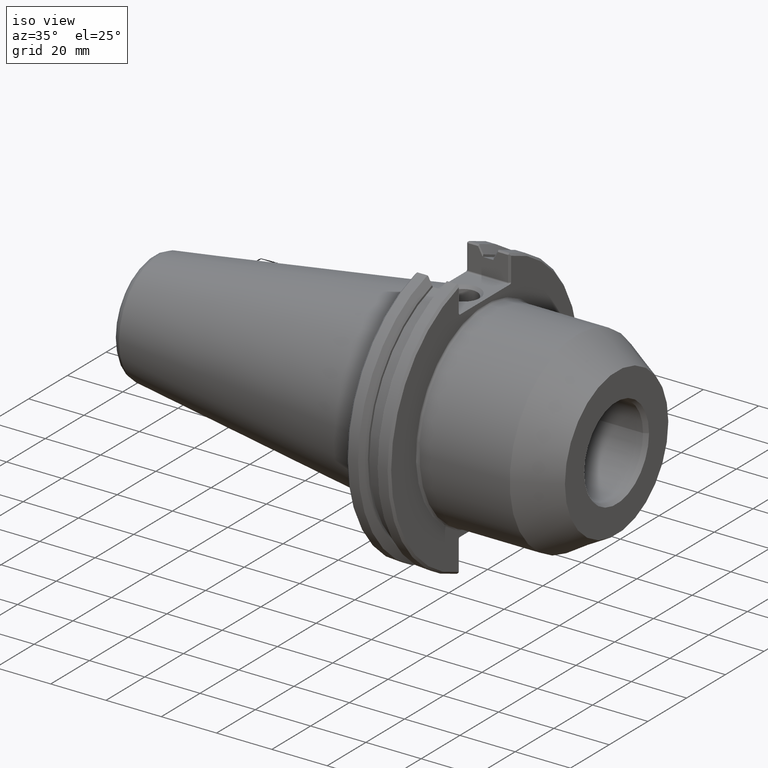
[diagram: clean part render]
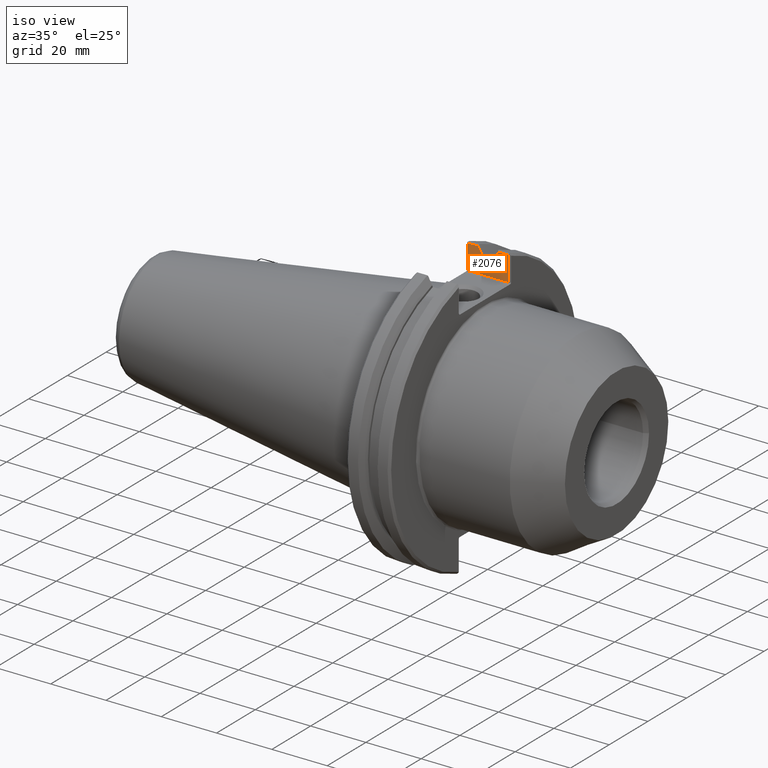
[diagram: same view with one face highlighted and labeled with its STEP entity id]
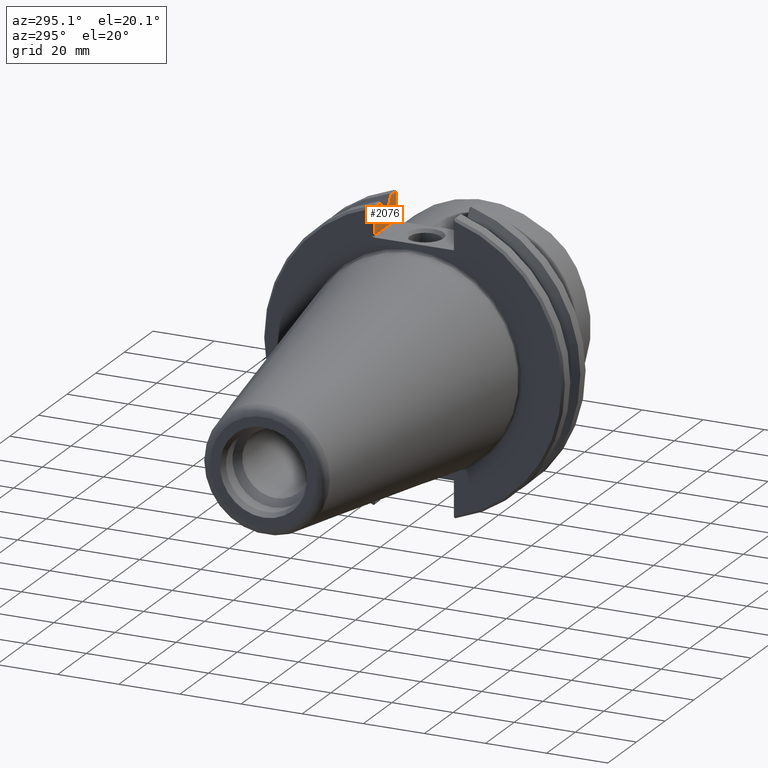
[diagram: same view with one face highlighted and labeled with its STEP entity id]
A machine part, iso view. The second image highlights one B-rep face of the part: STEP entity #2076.
A second angle (auxiliary view) of the same face is appended — the face is thin or edge-on in the first view.
In plain terms, the highlighted planar face has unit normal (-0, 1, 0).
Its self-contained STEP definition (entity closure, byte-faithful):
#1454=CARTESIAN_POINT('',(0.362849999993557,0.507500000000179,1.725081352368435));
#1455=VERTEX_POINT('',#1454);
#1465=CARTESIAN_POINT('',(0.362849999999929,0.507500000000179,1.723848238679724));
#1466=VERTEX_POINT('',#1465);
#1467=CARTESIAN_POINT('',(0.36284999999993,0.507500000000179,1.725081352368434));
#1468=DIRECTION('',(0.0,0.0,-1.0));
#1469=VECTOR('',#1468,0.00123311368871);
#1470=LINE('',#1467,#1469);
#1471=EDGE_CURVE('',#1455,#1466,#1470,.T.);
#1719=CARTESIAN_POINT('',(0.513849999999929,0.507500000000179,1.723848238679713));
#1720=VERTEX_POINT('',#1719);
#1728=CARTESIAN_POINT('',(0.513850000001122,0.507500000000179,1.725081352349767));
#1729=VERTEX_POINT('',#1728);
#1730=CARTESIAN_POINT('',(0.51384999999993,0.507500000000179,1.723848238679713));
#1731=DIRECTION('',(0.0,0.0,1.0));
#1732=VECTOR('',#1731,0.001233113670054);
#1733=LINE('',#1730,#1732);
#1734=EDGE_CURVE('',#1720,#1729,#1733,.T.);
#1886=CARTESIAN_POINT('',(0.580429496457739,0.507500000000179,1.844852935375717));
#1887=VERTEX_POINT('',#1886);
#1921=CARTESIAN_POINT('',(0.513850000002034,0.507500000000179,1.725081352349261));
#1922=CARTESIAN_POINT('',(0.518214049935065,0.507500000000179,1.732952999565582));
#1923=CARTESIAN_POINT('',(0.523921164037548,0.507500000000178,1.743241411980642));
#1924=CARTESIAN_POINT('',(0.529631363475252,0.507500000000178,1.75352811174215));
#1925=CARTESIAN_POINT('',(0.532320679756059,0.507500000000177,1.75837201378809));
#1926=CARTESIAN_POINT('',(0.533668084002457,0.507500000000178,1.760798511073289));
#1927=CARTESIAN_POINT('',(0.536368413029995,0.507500000000177,1.765660655347203));
#1928=CARTESIAN_POINT('',(0.537721339083838,0.507500000000178,1.76809630162729));
#1929=CARTESIAN_POINT('',(0.547303669655936,0.507500000000177,1.78534439575263));
#1930=CARTESIAN_POINT('',(0.55553908338639,0.507500000000178,1.800153505100488));
#1931=CARTESIAN_POINT('',(0.565172554558934,0.507500000000177,1.817460788399215));
#1932=CARTESIAN_POINT('',(0.566565020324735,0.507500000000177,1.819962074969735));
#1933=CARTESIAN_POINT('',(0.569355728952249,0.507500000000177,1.824974259487159));
#1934=CARTESIAN_POINT('',(0.570753973107145,0.507500000000177,1.827485156713952));
#1935=CARTESIAN_POINT('',(0.573556271818061,0.507500000000178,1.83251662222848));
#1936=CARTESIAN_POINT('',(0.57631500653817,0.507500000000178,1.837469115655098));
#1937=CARTESIAN_POINT('',(0.579074363581965,0.507500000000178,1.842421262417515));
#1938=CARTESIAN_POINT('',(0.58042949645905,0.507500000000178,1.844852935375597));
#1939=B_SPLINE_CURVE_WITH_KNOTS('',3,(#1921,#1922,#1923,#1924,#1925,#1926,#1927,#1928,#1929,#1930,#1931,#1932,#1933,#1934,#1935,#1936,#1937,#1938),.UNSPECIFIED.,.F.,.U.,(4,1,2,2,2,2,2,2,1,4),(-0.068583308390229,8.847048E-012,0.02106841247096,0.04221771451481,0.063448392372424,0.192569056866742,0.214383299036722,0.23628294480285,0.25826851546732,0.279480911513455),.UNSPECIFIED.);
#1940=EDGE_CURVE('',#1729,#1887,#1939,.T.);
#1951=CARTESIAN_POINT('',(0.725,0.507500000000179,1.844852935393534));
#1952=VERTEX_POINT('',#1951);
#1953=CARTESIAN_POINT('',(0.580429496457739,0.507500000000179,1.844852935393534));
#1954=DIRECTION('',(1.0,0.0,0.0));
#1955=VECTOR('',#1954,0.144570503542261);
#1956=LINE('',#1953,#1955);
#1957=EDGE_CURVE('',#1887,#1952,#1956,.T.);
#2006=CARTESIAN_POINT('',(0.125000000000071,0.507500000000179,1.472));
#2007=DIRECTION('',(0.0,1.0,0.0));
#2008=DIRECTION('',(0.0,0.0,1.0));
#2009=AXIS2_PLACEMENT_3D('',#2006,#2007,#2008);
#2010=PLANE('',#2009);
#2011=ORIENTED_EDGE('',*,*,#1940,.F.);
#2012=ORIENTED_EDGE('',*,*,#1734,.F.);
#2013=CARTESIAN_POINT('',(0.362849999999929,0.507500000000171,1.723848238679719));
#2014=DIRECTION('',(1.0,1.029346E-013,0.0));
#2015=VECTOR('',#2014,0.151);
#2016=LINE('',#2013,#2015);
#2017=EDGE_CURVE('',#1466,#1720,#2016,.T.);
#2018=ORIENTED_EDGE('',*,*,#2017,.F.);
#2019=ORIENTED_EDGE('',*,*,#1471,.F.);
#2020=CARTESIAN_POINT('',(0.296270503523649,0.507500000000179,1.844852935392339));
#2021=VERTEX_POINT('',#2020);
#2022=CARTESIAN_POINT('',(0.296270503529368,0.507500000000179,1.844852935396141));
#2023=CARTESIAN_POINT('',(0.297625636410247,0.50750000000018,1.842421262431199));
#2024=CARTESIAN_POINT('',(0.300384993457778,0.507500000000181,1.837469115661948));
#2025=CARTESIAN_POINT('',(0.303143728181669,0.507500000000181,1.832516622228517));
#2026=CARTESIAN_POINT('',(0.305946026892523,0.507500000000181,1.82748515671405));
#2027=CARTESIAN_POINT('',(0.307344271047385,0.507500000000181,1.824974259487278));
#2028=CARTESIAN_POINT('',(0.31013497967485,0.507500000000182,1.819962074969893));
#2029=CARTESIAN_POINT('',(0.311527445440644,0.507500000000182,1.817460788399394));
#2030=CARTESIAN_POINT('',(0.321160916612911,0.507500000000182,1.800153505100488));
#2031=CARTESIAN_POINT('',(0.329396330343283,0.507500000000182,1.785344395752519));
#2032=CARTESIAN_POINT('',(0.338978660915651,0.507500000000182,1.768096301627223));
#2033=CARTESIAN_POINT('',(0.340331586969505,0.507500000000182,1.765660655347105));
#2034=CARTESIAN_POINT('',(0.343031915997091,0.507500000000182,1.760798511073136));
#2035=CARTESIAN_POINT('',(0.344379320243518,0.507500000000182,1.758372013787909));
#2036=CARTESIAN_POINT('',(0.347068636524344,0.507500000000182,1.753528111741968));
#2037=CARTESIAN_POINT('',(0.352778835962039,0.507500000000182,1.743241411980475));
#2038=CARTESIAN_POINT('',(0.358485950055643,0.507500000000179,1.732952999582061));
#2039=CARTESIAN_POINT('',(0.362849999988682,0.507500000000179,1.725081352365732));
#2040=B_SPLINE_CURVE_WITH_KNOTS('',3,(#2022,#2023,#2024,#2025,#2026,#2027,#2028,#2029,#2030,#2031,#2032,#2033,#2034,#2035,#2036,#2037,#2038,#2039),.UNSPECIFIED.,.F.,.U.,(4,1,2,2,2,2,2,2,1,4),(-0.021212396106558,-3.591117E-012,0.021985570657495,0.043885216420351,0.065699458587155,0.19482012306411,0.216050800919053,0.237200102960282,0.258268515419274,0.326851823808991),.UNSPECIFIED.);
#2041=EDGE_CURVE('',#2021,#1455,#2040,.T.);
#2042=ORIENTED_EDGE('',*,*,#2041,.F.);
#2043=CARTESIAN_POINT('',(0.15,0.507500000000179,1.844852935393534));
#2044=VERTEX_POINT('',#2043);
#2045=CARTESIAN_POINT('',(0.15,0.507500000000179,1.844852935393534));
#2046=DIRECTION('',(1.0,0.0,0.0));
#2047=VECTOR('',#2046,0.146270503523649);
#2048=LINE('',#2045,#2047);
#2049=EDGE_CURVE('',#2044,#2021,#2048,.T.);
#2050=ORIENTED_EDGE('',*,*,#2049,.F.);
#2051=CARTESIAN_POINT('',(0.15,0.507500000000179,1.492000000000001));
#2052=VERTEX_POINT('',#2051);
#2053=CARTESIAN_POINT('',(0.15,0.507500000000179,1.492000000000001));
#2054=DIRECTION('',(0.0,0.0,1.0));
#2055=VECTOR('',#2054,0.352852935393534);
#2056=LINE('',#2053,#2055);
#2057=EDGE_CURVE('',#2052,#2044,#2056,.T.);
#2058=ORIENTED_EDGE('',*,*,#2057,.F.);
#2059=CARTESIAN_POINT('',(0.725,0.507500000000179,1.492000000000001));
#2060=VERTEX_POINT('',#2059);
#2061=CARTESIAN_POINT('',(0.725,0.507500000000179,1.492000000000001));
#2062=DIRECTION('',(-1.0,0.0,0.0));
#2063=VECTOR('',#2062,0.575);
#2064=LINE('',#2061,#2063);
#2065=EDGE_CURVE('',#2060,#2052,#2064,.T.);
#2066=ORIENTED_EDGE('',*,*,#2065,.F.);
#2067=CARTESIAN_POINT('',(0.725,0.507500000000179,1.844852935393534));
#2068=DIRECTION('',(0.0,0.0,-1.0));
#2069=VECTOR('',#2068,0.352852935393533);
#2070=LINE('',#2067,#2069);
#2071=EDGE_CURVE('',#1952,#2060,#2070,.T.);
#2072=ORIENTED_EDGE('',*,*,#2071,.F.);
#2073=ORIENTED_EDGE('',*,*,#1957,.F.);
#2074=EDGE_LOOP('',(#2011,#2012,#2018,#2019,#2042,#2050,#2058,#2066,#2072,#2073));
#2075=FACE_OUTER_BOUND('',#2074,.T.);
#2076=ADVANCED_FACE('',(#2075),#2010,.F.);